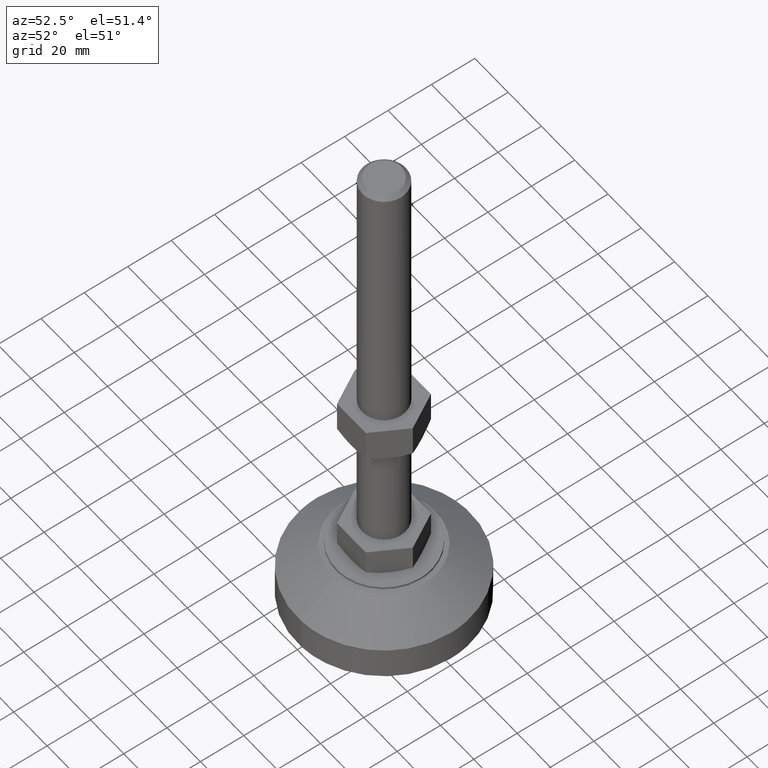
[diagram: clean part render]
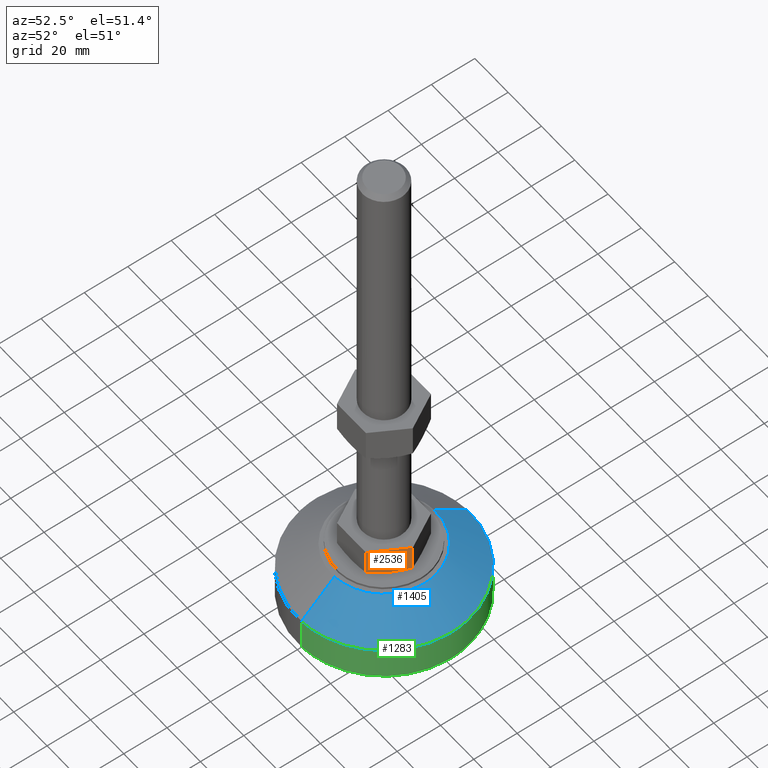
[diagram: same view with three faces highlighted in distinct colors, each labeled with its STEP entity id]
A machine part, auxiliary view with three faces highlighted in distinct colors.
Their STEP definitions:

[orange] entity #2536 — the highlighted face is a freeform B-spline surface patch.
#2198=CARTESIAN_POINT('',(17.320508075688199,5.684342E-014,42.500000000000000));
#2199=VERTEX_POINT('',#2198);
#2228=CARTESIAN_POINT('',(8.660254037843760,-15.0,42.500000000000000));
#2229=VERTEX_POINT('',#2228);
#2235=CARTESIAN_POINT('',(8.660254037843760,-15.0,42.500000000000000));
#2236=CARTESIAN_POINT('',(17.320508075688199,5.684342E-014,42.500000000000000));
#2237=QUASI_UNIFORM_CURVE('',1,(#2235,#2236),.UNSPECIFIED.,.F.,.U.);
#2238=EDGE_CURVE('',#2229,#2199,#2237,.T.);
#2277=CARTESIAN_POINT('',(17.320508075688949,1.405126E-012,30.839745962165050));
#2278=VERTEX_POINT('',#2277);
#2279=CARTESIAN_POINT('',(17.320508075688199,5.684342E-014,42.500000000000000));
#2280=CARTESIAN_POINT('',(17.320508075688949,1.405126E-012,30.839745962165050));
#2281=QUASI_UNIFORM_CURVE('',1,(#2279,#2280),.UNSPECIFIED.,.F.,.U.);
#2282=EDGE_CURVE('',#2199,#2278,#2281,.T.);
#2451=CARTESIAN_POINT('',(8.660254037843171,-15.000000000000901,30.839745962165050));
#2452=VERTEX_POINT('',#2451);
#2471=CARTESIAN_POINT('',(8.660254037843760,-15.0,42.500000000000000));
#2472=CARTESIAN_POINT('',(8.660254037843171,-15.000000000000901,30.839745962165050));
#2473=QUASI_UNIFORM_CURVE('',1,(#2471,#2472),.UNSPECIFIED.,.F.,.U.);
#2474=EDGE_CURVE('',#2229,#2452,#2473,.T.);
#2496=CARTESIAN_POINT('',(17.753087748094028,0.749249970928649,28.850650025196519));
#2497=CARTESIAN_POINT('',(8.227674133151876,-15.749250373259439,28.850650025196519));
#2498=CARTESIAN_POINT('',(17.753087748094028,0.749249970928649,43.149350323490637));
#2499=CARTESIAN_POINT('',(8.227674133151876,-15.749250373259439,43.149350323490637));
#2500=B_SPLINE_SURFACE_WITH_KNOTS('',1,1,((#2496,#2498),(#2497,#2499)),.UNSPECIFIED.,.F.,.F.,.U.,(2,2),(2,2),(0.0,19.050827229884259),(0.0,14.298700298294120),.UNSPECIFIED.);
#2501=CARTESIAN_POINT('',(12.990381056766060,-7.499999999999750,29.500000000000000));
#2502=VERTEX_POINT('',#2501);
#2503=CARTESIAN_POINT('',(17.320508075688949,1.405126E-012,30.839745962165050));
#2504=CARTESIAN_POINT('',(16.613480354092541,-1.224607936163080,30.431543316767350));
#2505=CARTESIAN_POINT('',(15.901297954757460,-2.458144036067741,30.095110476245711));
#2506=CARTESIAN_POINT('',(14.821884865747510,-4.327742348587846,29.745558985831568));
#2507=CARTESIAN_POINT('',(14.460219468945320,-4.954165191188794,29.654953438834099));
#2508=CARTESIAN_POINT('',(13.732676765448380,-6.214306118321508,29.532385768631290));
#2509=CARTESIAN_POINT('',(13.366795819235961,-6.848030506682791,29.500474319296561));
#2510=CARTESIAN_POINT('',(12.995898215202260,-7.490444001274716,29.500001757458570));
#2511=CARTESIAN_POINT('',(12.993139699088660,-7.495221891336966,29.500000000562530));
#2512=CARTESIAN_POINT('',(12.990381056714099,-7.500000000089631,29.500000001628031));
#2513=B_SPLINE_CURVE_WITH_KNOTS('',3,(#2503,#2504,#2505,#2506,#2507,#2508,#2509,#2510,#2511,#2512),.UNSPECIFIED.,.F.,.U.,(4,2,2,2,4),(0.0,0.250000000000000,0.375000000000000,0.500000000000001,0.500936598769625),.UNSPECIFIED.);
#2514=EDGE_CURVE('',#2278,#2502,#2513,.T.);
#2515=ORIENTED_EDGE('',*,*,#2514,.F.);
#2516=ORIENTED_EDGE('',*,*,#2282,.F.);
#2517=ORIENTED_EDGE('',*,*,#2238,.F.);
#2518=ORIENTED_EDGE('',*,*,#2474,.T.);
#2519=CARTESIAN_POINT('',(12.990381056766060,-7.499999999999750,29.500000000000000));
#2520=CARTESIAN_POINT('',(12.901096470844340,-7.654645439148801,29.500000036115999));
#2521=CARTESIAN_POINT('',(12.811679624323300,-7.809519960375820,29.501841569814321));
#2522=CARTESIAN_POINT('',(12.629812694746279,-8.124522722619771,29.509347877224329));
#2523=CARTESIAN_POINT('',(12.537502733118290,-8.284408266204190,29.515126012679360));
#2524=CARTESIAN_POINT('',(12.261257601409170,-8.762878869667942,29.538242611801159));
#2525=CARTESIAN_POINT('',(12.077734031787100,-9.080751016639761,29.561379370471521));
#2526=CARTESIAN_POINT('',(11.528999802975891,-10.031186580792900,29.652963666495658));
#2527=CARTESIAN_POINT('',(11.165629917420540,-10.660561684515271,29.743637065373989));
#2528=CARTESIAN_POINT('',(10.081989559210131,-12.537481842067811,30.093768839119100));
#2529=CARTESIAN_POINT('',(9.368163177432114,-13.773865403090390,30.431034429852151));
#2530=CARTESIAN_POINT('',(8.660254037843112,-15.000000000000909,30.839745962164841));
#2531=B_SPLINE_CURVE_WITH_KNOTS('',3,(#2519,#2520,#2521,#2522,#2523,#2524,#2525,#2526,#2527,#2528,#2529,#2530),.UNSPECIFIED.,.F.,.U.,(4,2,2,2,2,4),(0.500936598791467,0.531250000000001,0.562500000000001,0.625000000000001,0.750000000000000,1.0),.UNSPECIFIED.);
#2532=EDGE_CURVE('',#2502,#2452,#2531,.T.);
#2533=ORIENTED_EDGE('',*,*,#2532,.F.);
#2534=EDGE_LOOP('',(#2515,#2516,#2517,#2518,#2533));
#2535=FACE_OUTER_BOUND('',#2534,.T.);
#2536=ADVANCED_FACE('',(#2535),#2500,.F.);

[blue] entity #1405 — the highlighted face is a freeform B-spline surface patch.
#1235=CARTESIAN_POINT('',(-2.441941581403065,39.925391936875393,14.999999999998170));
#1236=VERTEX_POINT('',#1235);
#1242=CARTESIAN_POINT('',(40.000000000000007,0.0,15.0));
#1243=VERTEX_POINT('',#1242);
#1244=CARTESIAN_POINT('',(-2.441941581403065,39.925391936875393,14.999999999998174));
#1245=CARTESIAN_POINT('',(-1.222110531943767,40.000000000001755,14.999999999998204));
#1246=CARTESIAN_POINT('',(8.406873E-012,40.000000000001727,14.999999999998231));
#1247=CARTESIAN_POINT('',(40.000000000004086,40.000000000000846,14.999999999999146));
#1248=CARTESIAN_POINT('',(40.000000000000007,0.0,15.0));
#1256=(BOUNDED_CURVE()B_SPLINE_CURVE(2,(#1244,#1245,#1246,#1247,#1248),.UNSPECIFIED.,.F.,.U.)B_SPLINE_CURVE_WITH_KNOTS((3,2,3),(0.239332962241893,0.250000000000000,0.500000000000000),.UNSPECIFIED.)CURVE()GEOMETRIC_REPRESENTATION_ITEM()RATIONAL_B_SPLINE_CURVE((0.976072041673040,0.987502787903293,1.0,0.707106781186548,1.0))REPRESENTATION_ITEM(''));
#1257=EDGE_CURVE('',#1236,#1243,#1256,.T.);
#1259=CARTESIAN_POINT('',(2.441941581403095,-39.925391936875393,14.999999999998179));
#1260=VERTEX_POINT('',#1259);
#1261=CARTESIAN_POINT('',(40.000000000000007,0.0,15.0));
#1262=CARTESIAN_POINT('',(39.999999999995694,-37.628242676212182,14.999999999999092));
#1263=CARTESIAN_POINT('',(2.441941581403095,-39.925391936875393,14.999999999998177));
#1271=(BOUNDED_CURVE()B_SPLINE_CURVE(2,(#1261,#1262,#1263),.UNSPECIFIED.,.F.,.U.)B_SPLINE_CURVE_WITH_KNOTS((3,3),(0.500000000000000,0.739332962241893),.UNSPECIFIED.)CURVE()GEOMETRIC_REPRESENTATION_ITEM()RATIONAL_B_SPLINE_CURVE((1.0,0.719603993283254,0.976072041673040))REPRESENTATION_ITEM(''));
#1272=EDGE_CURVE('',#1243,#1260,#1271,.T.);
#1339=CARTESIAN_POINT('',(-1.440745533022588,23.555981242755681,28.324999999999999));
#1340=CARTESIAN_POINT('',(22.115235709733092,24.996726775778285,28.324999999999999));
#1341=CARTESIAN_POINT('',(23.555981242755699,1.440745533022602,28.324999999999999));
#1342=CARTESIAN_POINT('',(24.996726775778299,-22.115235709733078,28.324999999999999));
#1343=CARTESIAN_POINT('',(1.440745533022616,-23.555981242755681,28.324999999999999));
#1344=CARTESIAN_POINT('',(-2.466971482603568,40.334627204227829,14.666874999999999));
#1345=CARTESIAN_POINT('',(37.867655721624253,42.801598686831412,14.666874999999992));
#1346=CARTESIAN_POINT('',(40.334627204227843,2.466971482603583,14.666874999999999));
#1347=CARTESIAN_POINT('',(42.801598686831426,-37.867655721624246,14.666874999999992));
#1348=CARTESIAN_POINT('',(2.466971482603597,-40.334627204227829,14.666874999999999));
#1356=(BOUNDED_SURFACE()B_SPLINE_SURFACE(2,1,((#1339,#1344),(#1340,#1345),(#1341,#1346),(#1342,#1347),(#1343,#1348)),.UNSPECIFIED.,.F.,.F.,.U.)B_SPLINE_SURFACE_WITH_KNOTS((3,2,3),(2,2),(0.0,66.953480221987405,133.906960443974810),(0.0,21.659189239573220),.UNSPECIFIED.)GEOMETRIC_REPRESENTATION_ITEM()RATIONAL_B_SPLINE_SURFACE(((1.0,1.0),(0.707106781186548,0.707106781186548),(1.0,1.0),(0.707106781186548,0.707106781186548),(1.0,1.0)))REPRESENTATION_ITEM('')SURFACE());
#1357=ORIENTED_EDGE('',*,*,#1257,.F.);
#1358=CARTESIAN_POINT('',(-1.465164949747218,23.955235162195009,27.999999999897611));
#1359=VERTEX_POINT('',#1358);
#1360=CARTESIAN_POINT('',(-1.465164949747218,23.955235162195009,27.999999999897611));
#1361=CARTESIAN_POINT('',(-2.441941581411866,39.925391936876103,14.999999999998050));
#1362=QUASI_UNIFORM_CURVE('',1,(#1360,#1361),.UNSPECIFIED.,.F.,.U.);
#1363=EDGE_CURVE('',#1359,#1236,#1362,.T.);
#1364=ORIENTED_EDGE('',*,*,#1363,.F.);
#1365=CARTESIAN_POINT('',(23.999999999999659,0.0,28.0));
#1366=VERTEX_POINT('',#1365);
#1367=CARTESIAN_POINT('',(-1.465164949747218,23.955235162195009,27.999999999897611));
#1368=CARTESIAN_POINT('',(-0.733266319626453,24.000000000123624,27.999999999899082));
#1369=CARTESIAN_POINT('',(-7.449812E-012,24.000000000121702,27.999999999900641));
#1370=CARTESIAN_POINT('',(23.999999999996053,24.000000000058815,27.999999999951829));
#1371=CARTESIAN_POINT('',(23.999999999999659,0.0,28.0));
#1379=(BOUNDED_CURVE()B_SPLINE_CURVE(2,(#1367,#1368,#1369,#1370,#1371),.UNSPECIFIED.,.F.,.U.)B_SPLINE_CURVE_WITH_KNOTS((3,2,3),(0.239332962235464,0.250000000000000,0.500000000000000),.UNSPECIFIED.)CURVE()GEOMETRIC_REPRESENTATION_ITEM()RATIONAL_B_SPLINE_CURVE((0.976072041659262,0.987502787895762,1.0,0.707106781186548,1.0))REPRESENTATION_ITEM(''));
#1380=EDGE_CURVE('',#1359,#1366,#1379,.T.);
#1381=ORIENTED_EDGE('',*,*,#1380,.T.);
#1382=CARTESIAN_POINT('',(1.465164949747240,-23.955235162194999,27.999999999897611));
#1383=VERTEX_POINT('',#1382);
#1384=CARTESIAN_POINT('',(23.999999999999659,0.0,28.0));
#1385=CARTESIAN_POINT('',(24.000000000003517,-22.576945604946616,27.999999999948816));
#1386=CARTESIAN_POINT('',(1.465164949747240,-23.955235162195002,27.999999999897611));
#1394=(BOUNDED_CURVE()B_SPLINE_CURVE(2,(#1384,#1385,#1386),.UNSPECIFIED.,.F.,.U.)B_SPLINE_CURVE_WITH_KNOTS((3,3),(0.500000000000000,0.739332962235464),.UNSPECIFIED.)CURVE()GEOMETRIC_REPRESENTATION_ITEM()RATIONAL_B_SPLINE_CURVE((1.0,0.719603993290786,0.976072041659262))REPRESENTATION_ITEM(''));
#1395=EDGE_CURVE('',#1366,#1383,#1394,.T.);
#1396=ORIENTED_EDGE('',*,*,#1395,.T.);
#1397=CARTESIAN_POINT('',(1.465164949747240,-23.955235162194999,27.999999999897611));
#1398=CARTESIAN_POINT('',(2.441941581411901,-39.925391936876103,14.999999999998050));
#1399=QUASI_UNIFORM_CURVE('',1,(#1397,#1398),.UNSPECIFIED.,.F.,.U.);
#1400=EDGE_CURVE('',#1383,#1260,#1399,.T.);
#1401=ORIENTED_EDGE('',*,*,#1400,.T.);
#1402=ORIENTED_EDGE('',*,*,#1272,.F.);
#1403=EDGE_LOOP('',(#1357,#1364,#1381,#1396,#1401,#1402));
#1404=FACE_OUTER_BOUND('',#1403,.T.);
#1405=ADVANCED_FACE('',(#1404),#1356,.T.);

[green] entity #1283 — the highlighted face is a freeform B-spline surface patch.
#1146=CARTESIAN_POINT('',(-2.441928921607621,39.925392711176372,-8.679168E-014));
#1147=VERTEX_POINT('',#1146);
#1161=CARTESIAN_POINT('',(40.000000000000007,0.0,0.0));
#1162=VERTEX_POINT('',#1161);
#1163=CARTESIAN_POINT('',(-2.441928921607621,39.925392711176372,-8.679168E-014));
#1164=CARTESIAN_POINT('',(-1.222104184301847,39.999999999998025,-8.554444E-014));
#1165=CARTESIAN_POINT('',(1.340076E-013,39.999999999998053,-8.421859E-014));
#1166=CARTESIAN_POINT('',(40.000000000000071,39.999999999999048,-4.082275E-014));
#1167=CARTESIAN_POINT('',(40.000000000000007,0.0,0.0));
#1175=(BOUNDED_CURVE()B_SPLINE_CURVE(2,(#1163,#1164,#1165,#1166,#1167),.UNSPECIFIED.,.F.,.U.)B_SPLINE_CURVE_WITH_KNOTS((3,2,3),(0.239333016954158,0.250000000000000,0.500000000000000),.UNSPECIFIED.)CURVE()GEOMETRIC_REPRESENTATION_ITEM()RATIONAL_B_SPLINE_CURVE((0.976072158931868,0.987502852002700,1.0,0.707106781186548,1.0))REPRESENTATION_ITEM(''));
#1176=EDGE_CURVE('',#1147,#1162,#1175,.T.);
#1178=CARTESIAN_POINT('',(2.441928921607653,-39.925392711176357,-8.504308E-014));
#1179=VERTEX_POINT('',#1178);
#1180=CARTESIAN_POINT('',(40.000000000000007,0.0,0.0));
#1181=CARTESIAN_POINT('',(39.999999999999950,-37.628254629916938,-4.252154E-014));
#1182=CARTESIAN_POINT('',(2.441928921607653,-39.925392711176364,-8.504308E-014));
#1190=(BOUNDED_CURVE()B_SPLINE_CURVE(2,(#1180,#1181,#1182),.UNSPECIFIED.,.F.,.U.)B_SPLINE_CURVE_WITH_KNOTS((3,3),(0.500000000000000,0.739333016954158),.UNSPECIFIED.)CURVE()GEOMETRIC_REPRESENTATION_ITEM()RATIONAL_B_SPLINE_CURVE((1.0,0.719603929183848,0.976072158931868))REPRESENTATION_ITEM(''));
#1191=EDGE_CURVE('',#1162,#1179,#1190,.T.);
#1217=CARTESIAN_POINT('',(-2.441941581394265,39.925391936874668,15.375000000000000));
#1218=CARTESIAN_POINT('',(37.483450355480407,42.367333518268957,15.375000000000002));
#1219=CARTESIAN_POINT('',(39.925391936874682,2.441941581394279,15.375000000000000));
#1220=CARTESIAN_POINT('',(42.367333518268971,-37.483450355480386,15.375000000000002));
#1221=CARTESIAN_POINT('',(2.441941581394294,-39.925391936874668,15.375000000000000));
#1222=CARTESIAN_POINT('',(-2.441941581394265,39.925391936874668,-0.384375000000087));
#1223=CARTESIAN_POINT('',(37.483450355480407,42.367333518268957,-0.384375000000087));
#1224=CARTESIAN_POINT('',(39.925391936874682,2.441941581394279,-0.384375000000087));
#1225=CARTESIAN_POINT('',(42.367333518268971,-37.483450355480386,-0.384375000000087));
#1226=CARTESIAN_POINT('',(2.441941581394294,-39.925391936874668,-0.384375000000087));
#1234=(BOUNDED_SURFACE()B_SPLINE_SURFACE(2,1,((#1217,#1222),(#1218,#1223),(#1219,#1224),(#1220,#1225),(#1221,#1226)),.UNSPECIFIED.,.F.,.F.,.U.)B_SPLINE_SURFACE_WITH_KNOTS((3,2,3),(2,2),(0.0,66.274169979695188,132.548339959390400),(0.0,15.759375000000089),.UNSPECIFIED.)GEOMETRIC_REPRESENTATION_ITEM()RATIONAL_B_SPLINE_SURFACE(((1.0,1.0),(0.707106781186548,0.707106781186548),(1.0,1.0),(0.707106781186548,0.707106781186548),(1.0,1.0)))REPRESENTATION_ITEM('')SURFACE());
#1235=CARTESIAN_POINT('',(-2.441941581403065,39.925391936875393,14.999999999998170));
#1236=VERTEX_POINT('',#1235);
#1237=CARTESIAN_POINT('',(-2.441941581403065,39.925391936875393,14.999999999998170));
#1238=CARTESIAN_POINT('',(-2.441928921607621,39.925392711176372,-8.679168E-014));
#1239=QUASI_UNIFORM_CURVE('',1,(#1237,#1238),.UNSPECIFIED.,.F.,.U.);
#1240=EDGE_CURVE('',#1236,#1147,#1239,.T.);
#1241=ORIENTED_EDGE('',*,*,#1240,.F.);
#1242=CARTESIAN_POINT('',(40.000000000000007,0.0,15.0));
#1243=VERTEX_POINT('',#1242);
#1244=CARTESIAN_POINT('',(-2.441941581403065,39.925391936875393,14.999999999998174));
#1245=CARTESIAN_POINT('',(-1.222110531943767,40.000000000001755,14.999999999998204));
#1246=CARTESIAN_POINT('',(8.406873E-012,40.000000000001727,14.999999999998231));
#1247=CARTESIAN_POINT('',(40.000000000004086,40.000000000000846,14.999999999999146));
#1248=CARTESIAN_POINT('',(40.000000000000007,0.0,15.0));
#1256=(BOUNDED_CURVE()B_SPLINE_CURVE(2,(#1244,#1245,#1246,#1247,#1248),.UNSPECIFIED.,.F.,.U.)B_SPLINE_CURVE_WITH_KNOTS((3,2,3),(0.239332962241893,0.250000000000000,0.500000000000000),.UNSPECIFIED.)CURVE()GEOMETRIC_REPRESENTATION_ITEM()RATIONAL_B_SPLINE_CURVE((0.976072041673040,0.987502787903293,1.0,0.707106781186548,1.0))REPRESENTATION_ITEM(''));
#1257=EDGE_CURVE('',#1236,#1243,#1256,.T.);
#1258=ORIENTED_EDGE('',*,*,#1257,.T.);
#1259=CARTESIAN_POINT('',(2.441941581403095,-39.925391936875393,14.999999999998179));
#1260=VERTEX_POINT('',#1259);
#1261=CARTESIAN_POINT('',(40.000000000000007,0.0,15.0));
#1262=CARTESIAN_POINT('',(39.999999999995694,-37.628242676212182,14.999999999999092));
#1263=CARTESIAN_POINT('',(2.441941581403095,-39.925391936875393,14.999999999998177));
#1271=(BOUNDED_CURVE()B_SPLINE_CURVE(2,(#1261,#1262,#1263),.UNSPECIFIED.,.F.,.U.)B_SPLINE_CURVE_WITH_KNOTS((3,3),(0.500000000000000,0.739332962241893),.UNSPECIFIED.)CURVE()GEOMETRIC_REPRESENTATION_ITEM()RATIONAL_B_SPLINE_CURVE((1.0,0.719603993283254,0.976072041673040))REPRESENTATION_ITEM(''));
#1272=EDGE_CURVE('',#1243,#1260,#1271,.T.);
#1273=ORIENTED_EDGE('',*,*,#1272,.T.);
#1274=CARTESIAN_POINT('',(2.441941581403095,-39.925391936875393,14.999999999998179));
#1275=CARTESIAN_POINT('',(2.441928921607653,-39.925392711176357,-8.504308E-014));
#1276=QUASI_UNIFORM_CURVE('',1,(#1274,#1275),.UNSPECIFIED.,.F.,.U.);
#1277=EDGE_CURVE('',#1260,#1179,#1276,.T.);
#1278=ORIENTED_EDGE('',*,*,#1277,.T.);
#1279=ORIENTED_EDGE('',*,*,#1191,.F.);
#1280=ORIENTED_EDGE('',*,*,#1176,.F.);
#1281=EDGE_LOOP('',(#1241,#1258,#1273,#1278,#1279,#1280));
#1282=FACE_OUTER_BOUND('',#1281,.T.);
#1283=ADVANCED_FACE('',(#1282),#1234,.T.);